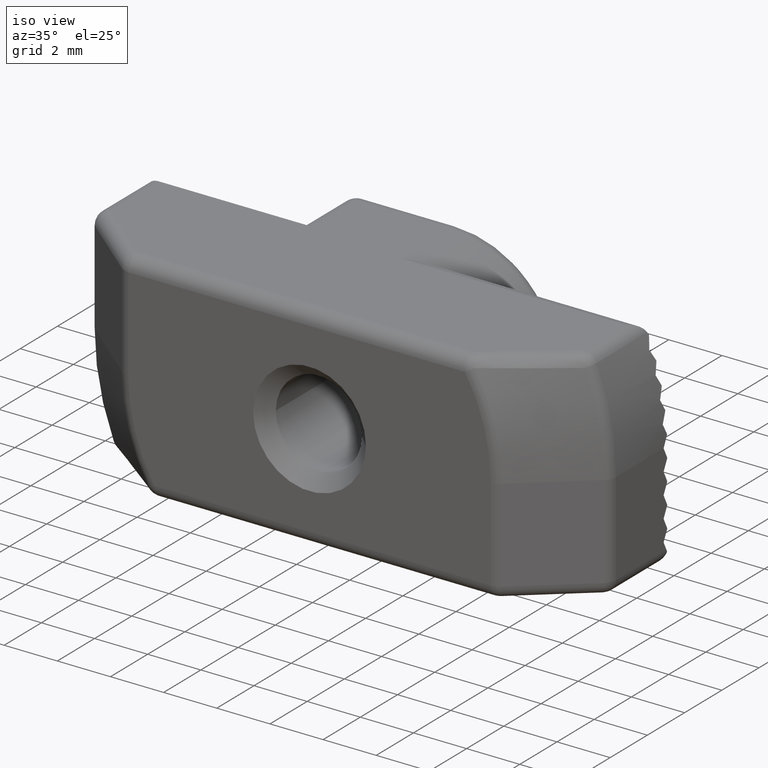
[diagram: clean part render]
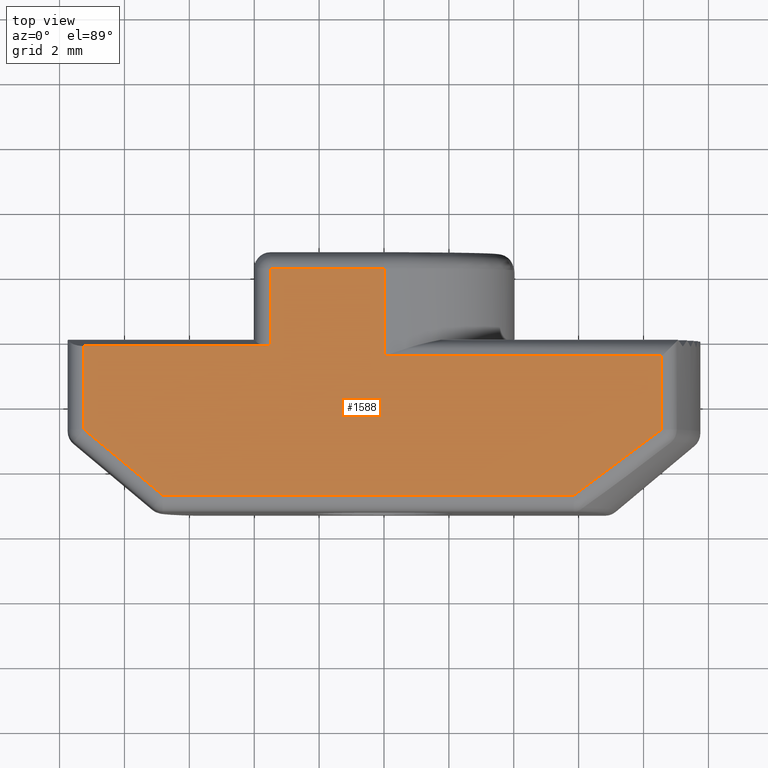
[diagram: tour spotlight — one face highlighted and labeled with its STEP entity id]
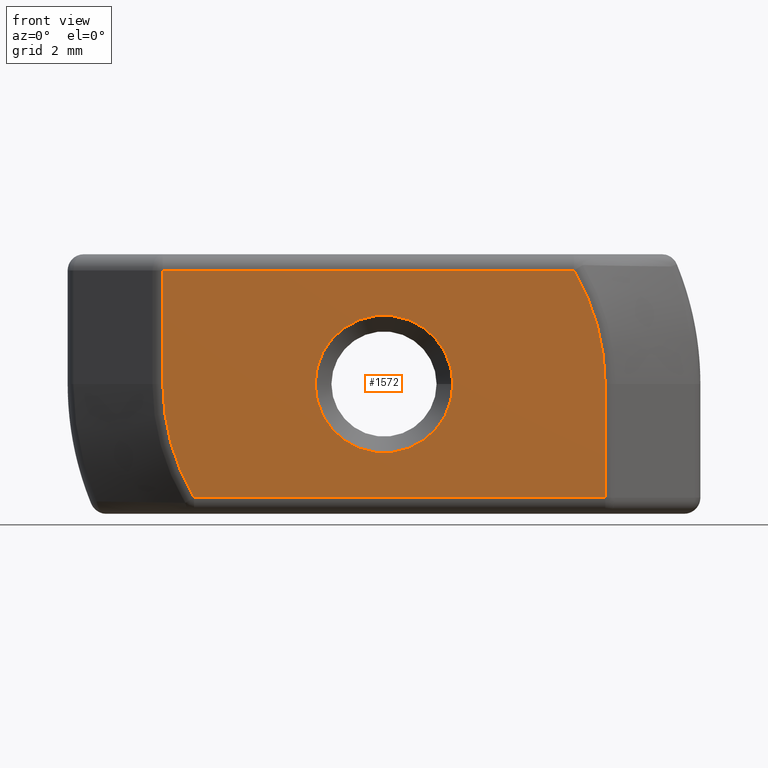
[diagram: tour spotlight — one face highlighted and labeled with its STEP entity id]
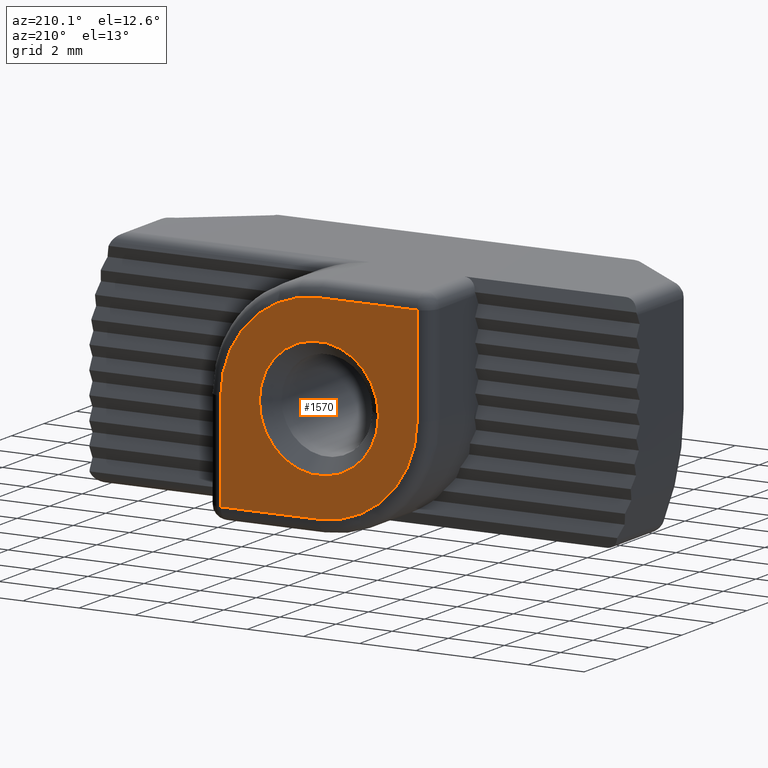
[diagram: tour spotlight — one face highlighted and labeled with its STEP entity id]
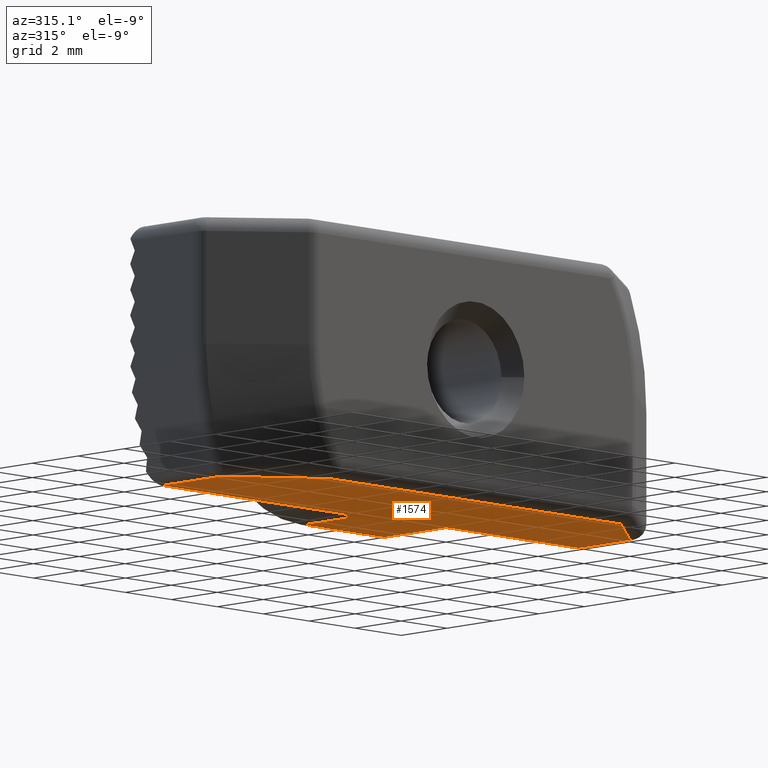
[diagram: tour spotlight — one face highlighted and labeled with its STEP entity id]
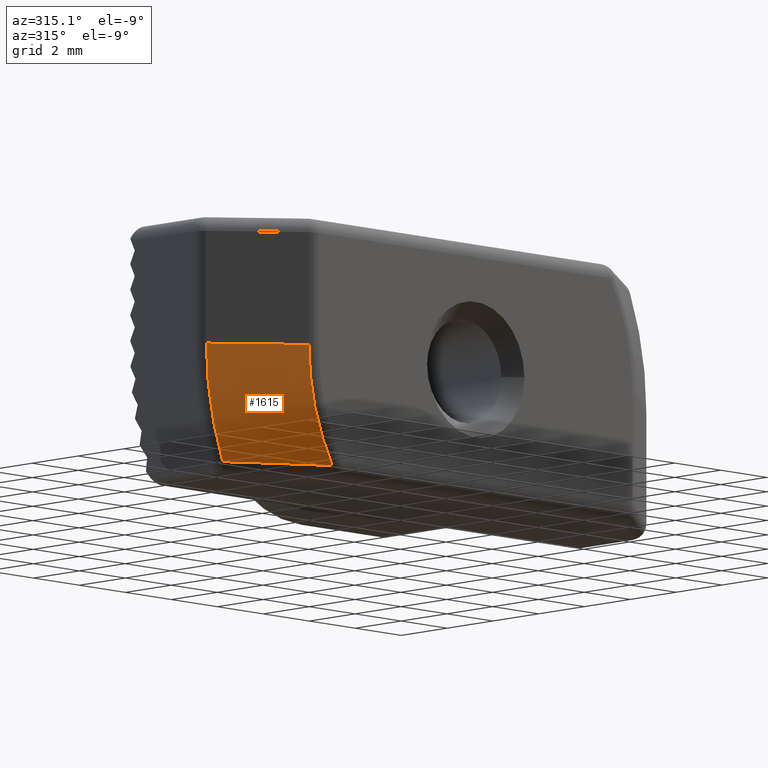
[diagram: tour spotlight — one face highlighted and labeled with its STEP entity id]
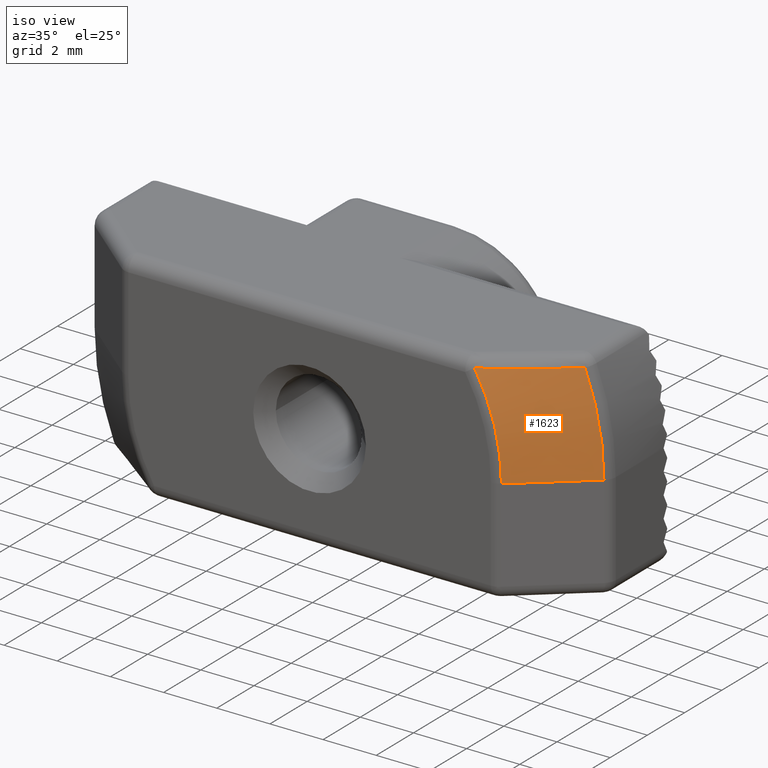
[diagram: tour spotlight — one face highlighted and labeled with its STEP entity id]
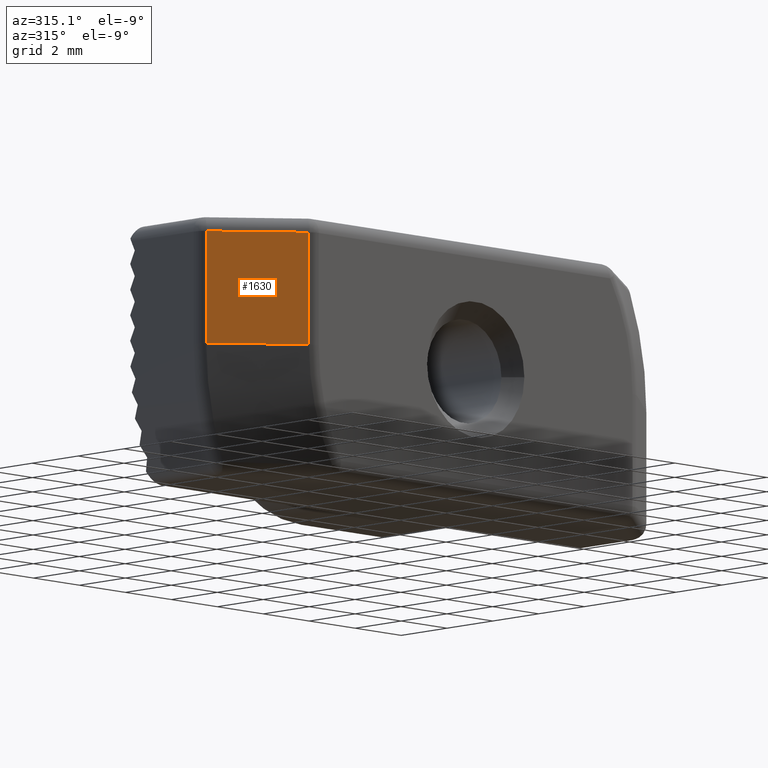
[diagram: tour spotlight — one face highlighted and labeled with its STEP entity id]
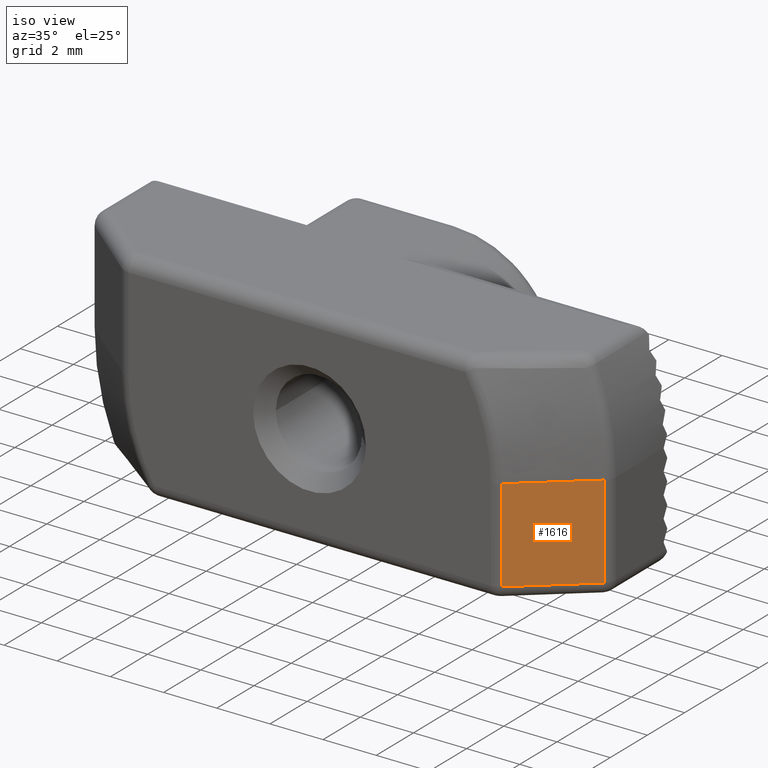
[diagram: tour spotlight — one face highlighted and labeled with its STEP entity id]
A machine part: a face-by-face anatomy tour. The part has 99 B-rep faces; the first image is the clean iso view, then the 8 largest visible faces are spotlighted one at a time (largest first), each with its STEP entity span.

Face 1 — top view, entity #1588. In plain terms, the highlighted planar face has unit normal (0, 0, 1).
Definition (entity closure, byte-faithful):
#35=B_SPLINE_CURVE_WITH_KNOTS('',3,(#2595,#2596,#2597,#2598),
 .UNSPECIFIED.,.F.,.F.,(4,4),(-0.515121076214052,-0.176231007186257),
 .UNSPECIFIED.);
#109=LINE('',#2509,#239);
#112=LINE('',#2528,#242);
#126=LINE('',#2558,#256);
#127=LINE('',#2587,#257);
#128=LINE('',#2589,#258);
#129=LINE('',#2591,#259);
#130=LINE('',#2593,#260);
#131=LINE('',#2600,#261);
#132=LINE('',#2601,#262);
#239=VECTOR('',#1965,3.5);
#242=VECTOR('',#1990,2.4);
#256=VECTOR('',#2010,2.70901699437495);
#257=VECTOR('',#2033,5.75);
#258=VECTOR('',#2034,2.56635666290024);
#259=VECTOR('',#2035,3.16986493998181);
#260=VECTOR('',#2036,12.6700963714095);
#261=VECTOR('',#2037,2.2573396685253);
#262=VECTOR('',#2038,8.56227189477185);
#353=PLANE('',#1728);
#451=FACE_OUTER_BOUND('',#555,.T.);
#555=EDGE_LOOP('',(#1189,#1190,#1191,#1192,#1193,#1194,#1195,#1196,#1197,
#1198));
#721=VERTEX_POINT('',#2490);
#725=VERTEX_POINT('',#2505);
#729=VERTEX_POINT('',#2525);
#743=VERTEX_POINT('',#2557);
#754=VERTEX_POINT('',#2586);
#755=VERTEX_POINT('',#2588);
#756=VERTEX_POINT('',#2590);
#757=VERTEX_POINT('',#2592);
#758=VERTEX_POINT('',#2594);
#759=VERTEX_POINT('',#2599);
#881=EDGE_CURVE('',#721,#725,#109,.T.);
#890=EDGE_CURVE('',#729,#721,#112,.T.);
#905=EDGE_CURVE('',#725,#743,#126,.T.);
#917=EDGE_CURVE('',#729,#754,#127,.T.);
#918=EDGE_CURVE('',#755,#754,#128,.T.);
#919=EDGE_CURVE('',#756,#755,#129,.T.);
#920=EDGE_CURVE('',#757,#756,#130,.T.);
#921=EDGE_CURVE('',#758,#757,#35,.T.);
#922=EDGE_CURVE('',#759,#758,#131,.T.);
#923=EDGE_CURVE('',#743,#759,#132,.T.);
#1189=ORIENTED_EDGE('',*,*,#881,.F.);
#1190=ORIENTED_EDGE('',*,*,#890,.F.);
#1191=ORIENTED_EDGE('',*,*,#917,.T.);
#1192=ORIENTED_EDGE('',*,*,#918,.F.);
#1193=ORIENTED_EDGE('',*,*,#919,.F.);
#1194=ORIENTED_EDGE('',*,*,#920,.F.);
#1195=ORIENTED_EDGE('',*,*,#921,.F.);
#1196=ORIENTED_EDGE('',*,*,#922,.F.);
#1197=ORIENTED_EDGE('',*,*,#923,.F.);
#1198=ORIENTED_EDGE('',*,*,#905,.F.);
#1588=ADVANCED_FACE('',(#451),#353,.T.);
#1728=AXIS2_PLACEMENT_3D('',#2585,#2031,#2032);
#1965=DIRECTION('',(1.,0.,0.));
#1990=DIRECTION('',(0.,1.,0.));
#2010=DIRECTION('',(0.,-1.,0.));
#2031=DIRECTION('center_axis',(0.,0.,1.));
#2032=DIRECTION('ref_axis',(1.,0.,0.));
#2033=DIRECTION('',(-1.,0.,0.));
#2034=DIRECTION('',(0.,1.,0.));
#2035=DIRECTION('',(-0.767076870152409,0.641555200491106,0.));
#2036=DIRECTION('',(-1.,0.,0.));
#2037=DIRECTION('',(0.,-1.,0.));
#2038=DIRECTION('',(1.,0.,0.));
#2490=CARTESIAN_POINT('',(-3.5,2.2,4.));
#2505=CARTESIAN_POINT('',(5.55111512312578E-16,2.2,4.));
#2509=CARTESIAN_POINT('',(2.,2.2,4.));
#2525=CARTESIAN_POINT('',(-3.5,-0.200000000000001,4.));
#2528=CARTESIAN_POINT('',(-3.5,0.542762680090972,4.));
#2557=CARTESIAN_POINT('',(5.55111512312578E-16,-0.509016994374949,4.));
#2558=CARTESIAN_POINT('',(5.55111512312578E-16,2.7,4.));
#2585=CARTESIAN_POINT('Origin',(0.,-1.61447463981806,4.));
#2586=CARTESIAN_POINT('',(-9.25,-0.200000000000001,4.));
#2587=CARTESIAN_POINT('',(-4.875,-0.200000000000001,4.));
#2588=CARTESIAN_POINT('',(-9.25,-2.76635666290024,4.));
#2589=CARTESIAN_POINT('',(-9.25,-0.807237319909028,4.));
#2590=CARTESIAN_POINT('',(-6.8184699230329,-4.8,4.));
#2591=CARTESIAN_POINT('',(-6.90166250491495,-4.73042074969865,4.));
#2592=CARTESIAN_POINT('',(5.8516264483766,-4.8,4.));
#2593=CARTESIAN_POINT('',(-3.5,-4.8,4.));
#2594=CARTESIAN_POINT('',(8.56227189477185,-2.76635666290024,4.));
#2595=CARTESIAN_POINT('Ctrl Pts',(8.56227189477186,-2.76635666290024,4.));
#2596=CARTESIAN_POINT('Ctrl Pts',(7.66905012195268,-3.45787185373182,4.));
#2597=CARTESIAN_POINT('Ctrl Pts',(6.7693143617693,-4.14131189762828,4.));
#2598=CARTESIAN_POINT('Ctrl Pts',(5.85162644837423,-4.79999999999948,4.));
#2599=CARTESIAN_POINT('',(8.56227189477185,-0.509016994374949,4.));
#2600=CARTESIAN_POINT('',(8.56227189477185,-1.5,4.));
#2601=CARTESIAN_POINT('',(4.875,-0.509016994374949,4.));

Face 2 — front view, entity #1572. In plain terms, the highlighted planar face has unit normal (0, -1, 0).
Definition (entity closure, byte-faithful):
#93=LINE('',#2441,#223);
#94=LINE('',#2445,#224);
#95=LINE('',#2447,#225);
#96=LINE('',#2450,#226);
#223=VECTOR('',#1901,3.5);
#224=VECTOR('',#1904,12.6700963714064);
#225=VECTOR('',#1905,3.5);
#226=VECTOR('',#1908,12.6700963714064);
#350=PLANE('',#1679);
#430=FACE_BOUND('',#539,.T.);
#435=FACE_OUTER_BOUND('',#538,.T.);
#538=EDGE_LOOP('',(#1093,#1094,#1095,#1096,#1097,#1098));
#539=EDGE_LOOP('',(#1099));
#639=CIRCLE('',#1678,2.121);
#640=CIRCLE('',#1680,6.8184699230329);
#641=CIRCLE('',#1681,6.8184699230329);
#699=VERTEX_POINT('',#2436);
#700=VERTEX_POINT('',#2439);
#701=VERTEX_POINT('',#2440);
#702=VERTEX_POINT('',#2442);
#703=VERTEX_POINT('',#2444);
#704=VERTEX_POINT('',#2446);
#705=VERTEX_POINT('',#2448);
#847=EDGE_CURVE('',#699,#699,#639,.T.);
#848=EDGE_CURVE('',#700,#701,#93,.T.);
#849=EDGE_CURVE('',#702,#700,#640,.T.);
#850=EDGE_CURVE('',#703,#702,#94,.T.);
#851=EDGE_CURVE('',#704,#703,#95,.T.);
#852=EDGE_CURVE('',#705,#704,#641,.T.);
#853=EDGE_CURVE('',#701,#705,#96,.T.);
#1093=ORIENTED_EDGE('',*,*,#848,.F.);
#1094=ORIENTED_EDGE('',*,*,#849,.F.);
#1095=ORIENTED_EDGE('',*,*,#850,.F.);
#1096=ORIENTED_EDGE('',*,*,#851,.F.);
#1097=ORIENTED_EDGE('',*,*,#852,.F.);
#1098=ORIENTED_EDGE('',*,*,#853,.F.);
#1099=ORIENTED_EDGE('',*,*,#847,.F.);
#1572=ADVANCED_FACE('',(#435,#430),#350,.T.);
#1678=AXIS2_PLACEMENT_3D('',#2437,#1897,#1898);
#1679=AXIS2_PLACEMENT_3D('',#2438,#1899,#1900);
#1680=AXIS2_PLACEMENT_3D('',#2443,#1902,#1903);
#1681=AXIS2_PLACEMENT_3D('',#2449,#1906,#1907);
#1897=DIRECTION('center_axis',(0.,-1.,0.));
#1898=DIRECTION('ref_axis',(-1.,0.,0.));
#1899=DIRECTION('center_axis',(0.,-1.,0.));
#1900=DIRECTION('ref_axis',(1.,0.,0.));
#1901=DIRECTION('',(0.,0.,-1.));
#1902=DIRECTION('center_axis',(0.,1.,0.));
#1903=DIRECTION('ref_axis',(0.954110005881997,0.,0.29945633517402));
#1904=DIRECTION('',(1.,0.,0.));
#1905=DIRECTION('',(0.,0.,1.));
#1906=DIRECTION('center_axis',(0.,1.,0.));
#1907=DIRECTION('ref_axis',(-0.954110005881997,0.,-0.29945633517402));
#1908=DIRECTION('',(-1.,0.,0.));
#2436=CARTESIAN_POINT('',(2.121,-5.3,1.6475263668806E-15));
#2437=CARTESIAN_POINT('Origin',(1.66533453693773E-15,-5.3,1.38777878078145E-15));
#2438=CARTESIAN_POINT('Origin',(-7.,-5.3,0.));
#2439=CARTESIAN_POINT('',(6.8184699230329,-5.3,0.));
#2440=CARTESIAN_POINT('',(6.8184699230329,-5.3,-3.5));
#2441=CARTESIAN_POINT('',(6.8184699230329,-5.3,0.));
#2442=CARTESIAN_POINT('',(5.8516264483735,-5.3,3.5));
#2443=CARTESIAN_POINT('Origin',(0.,-5.3,0.));
#2444=CARTESIAN_POINT('',(-6.8184699230329,-5.3,3.5));
#2445=CARTESIAN_POINT('',(-3.5,-5.3,3.5));
#2446=CARTESIAN_POINT('',(-6.8184699230329,-5.3,2.77555756156289E-16));
#2447=CARTESIAN_POINT('',(-6.8184699230329,-5.3,0.));
#2448=CARTESIAN_POINT('',(-5.8516264483735,-5.3,-3.5));
#2449=CARTESIAN_POINT('Origin',(0.,-5.3,0.));
#2450=CARTESIAN_POINT('',(-3.5,-5.3,-3.5));

Face 3 — auxiliary view, entity #1570. In plain terms, the highlighted planar face has unit normal (0, 1, 0).
Definition (entity closure, byte-faithful):
#89=LINE('',#2425,#219);
#90=LINE('',#2427,#220);
#91=LINE('',#2431,#221);
#92=LINE('',#2433,#222);
#219=VECTOR('',#1887,3.5);
#220=VECTOR('',#1888,3.5);
#221=VECTOR('',#1891,3.5);
#222=VECTOR('',#1892,3.5);
#349=PLANE('',#1674);
#428=FACE_BOUND('',#535,.T.);
#433=FACE_OUTER_BOUND('',#534,.T.);
#534=EDGE_LOOP('',(#1084,#1085,#1086,#1087,#1088,#1089));
#535=EDGE_LOOP('',(#1090));
#635=CIRCLE('',#1671,2.121);
#637=CIRCLE('',#1675,3.5);
#638=CIRCLE('',#1676,3.5);
#691=VERTEX_POINT('',#2417);
#693=VERTEX_POINT('',#2423);
#694=VERTEX_POINT('',#2424);
#695=VERTEX_POINT('',#2426);
#696=VERTEX_POINT('',#2428);
#697=VERTEX_POINT('',#2430);
#698=VERTEX_POINT('',#2432);
#839=EDGE_CURVE('',#691,#691,#635,.T.);
#841=EDGE_CURVE('',#693,#694,#89,.T.);
#842=EDGE_CURVE('',#695,#693,#90,.T.);
#843=EDGE_CURVE('',#696,#695,#637,.T.);
#844=EDGE_CURVE('',#697,#696,#91,.T.);
#845=EDGE_CURVE('',#698,#697,#92,.T.);
#846=EDGE_CURVE('',#694,#698,#638,.T.);
#1084=ORIENTED_EDGE('',*,*,#841,.F.);
#1085=ORIENTED_EDGE('',*,*,#842,.F.);
#1086=ORIENTED_EDGE('',*,*,#843,.F.);
#1087=ORIENTED_EDGE('',*,*,#844,.F.);
#1088=ORIENTED_EDGE('',*,*,#845,.F.);
#1089=ORIENTED_EDGE('',*,*,#846,.F.);
#1090=ORIENTED_EDGE('',*,*,#839,.F.);
#1570=ADVANCED_FACE('',(#433,#428),#349,.T.);
#1671=AXIS2_PLACEMENT_3D('',#2418,#1879,#1880);
#1674=AXIS2_PLACEMENT_3D('',#2422,#1885,#1886);
#1675=AXIS2_PLACEMENT_3D('',#2429,#1889,#1890);
#1676=AXIS2_PLACEMENT_3D('',#2434,#1893,#1894);
#1879=DIRECTION('center_axis',(0.,1.,0.));
#1880=DIRECTION('ref_axis',(1.,0.,0.));
#1885=DIRECTION('center_axis',(0.,1.,0.));
#1886=DIRECTION('ref_axis',(-1.,0.,0.));
#1887=DIRECTION('',(0.,0.,1.));
#1888=DIRECTION('',(1.,0.,0.));
#1889=DIRECTION('center_axis',(0.,-1.,0.));
#1890=DIRECTION('ref_axis',(-0.707106781186548,0.,-0.707106781186547));
#1891=DIRECTION('',(0.,0.,-1.));
#1892=DIRECTION('',(-1.,0.,0.));
#1893=DIRECTION('center_axis',(0.,-1.,0.));
#1894=DIRECTION('ref_axis',(0.707106781186547,0.,0.707106781186548));
#2417=CARTESIAN_POINT('',(-2.121,2.7,1.6475263668806E-15));
#2418=CARTESIAN_POINT('Origin',(1.66533453693773E-15,2.7,1.38777878078145E-15));
#2422=CARTESIAN_POINT('Origin',(4.,2.7,0.));
#2423=CARTESIAN_POINT('',(3.5,2.7,-3.5));
#2424=CARTESIAN_POINT('',(3.5,2.7,0.));
#2425=CARTESIAN_POINT('',(3.5,2.7,0.));
#2426=CARTESIAN_POINT('',(0.,2.7,-3.5));
#2427=CARTESIAN_POINT('',(2.,2.7,-3.5));
#2428=CARTESIAN_POINT('',(-3.5,2.7,-5.55111512312578E-16));
#2429=CARTESIAN_POINT('Origin',(0.,2.7,-5.55111512312578E-16));
#2430=CARTESIAN_POINT('',(-3.5,2.7,3.5));
#2431=CARTESIAN_POINT('',(-3.5,2.7,0.));
#2432=CARTESIAN_POINT('',(8.32667268468867E-16,2.7,3.5));
#2433=CARTESIAN_POINT('',(2.,2.7,3.5));
#2434=CARTESIAN_POINT('Origin',(5.55111512312578E-16,2.7,0.));

Face 4 — auxiliary view, entity #1574. In plain terms, the highlighted planar face has unit normal (0, 0, -1).
Definition (entity closure, byte-faithful):
#33=B_SPLINE_CURVE_WITH_KNOTS('',3,(#2470,#2471,#2472,#2473),
 .UNSPECIFIED.,.F.,.F.,(4,4),(-0.515121076214052,-0.176231007186256),
 .UNSPECIFIED.);
#97=LINE('',#2456,#227);
#99=LINE('',#2462,#229);
#100=LINE('',#2464,#230);
#101=LINE('',#2466,#231);
#102=LINE('',#2468,#232);
#103=LINE('',#2475,#233);
#104=LINE('',#2477,#234);
#105=LINE('',#2479,#235);
#106=LINE('',#2480,#236);
#227=VECTOR('',#1913,5.75);
#229=VECTOR('',#1919,2.70901699437495);
#230=VECTOR('',#1920,2.25733966852529);
#231=VECTOR('',#1921,3.16986493998181);
#232=VECTOR('',#1922,12.6700963714095);
#233=VECTOR('',#1923,2.56635666290024);
#234=VECTOR('',#1924,8.56227189477185);
#235=VECTOR('',#1925,2.4);
#236=VECTOR('',#1926,3.5);
#351=PLANE('',#1685);
#437=FACE_OUTER_BOUND('',#541,.T.);
#541=EDGE_LOOP('',(#1104,#1105,#1106,#1107,#1108,#1109,#1110,#1111,#1112,
#1113));
#707=VERTEX_POINT('',#2453);
#708=VERTEX_POINT('',#2455);
#710=VERTEX_POINT('',#2461);
#711=VERTEX_POINT('',#2463);
#712=VERTEX_POINT('',#2465);
#713=VERTEX_POINT('',#2467);
#714=VERTEX_POINT('',#2469);
#715=VERTEX_POINT('',#2474);
#716=VERTEX_POINT('',#2476);
#717=VERTEX_POINT('',#2478);
#855=EDGE_CURVE('',#707,#708,#97,.T.);
#858=EDGE_CURVE('',#710,#708,#99,.T.);
#859=EDGE_CURVE('',#711,#707,#100,.T.);
#860=EDGE_CURVE('',#712,#711,#101,.T.);
#861=EDGE_CURVE('',#713,#712,#102,.T.);
#862=EDGE_CURVE('',#714,#713,#33,.T.);
#863=EDGE_CURVE('',#715,#714,#103,.T.);
#864=EDGE_CURVE('',#715,#716,#104,.T.);
#865=EDGE_CURVE('',#716,#717,#105,.T.);
#866=EDGE_CURVE('',#710,#717,#106,.T.);
#1104=ORIENTED_EDGE('',*,*,#858,.T.);
#1105=ORIENTED_EDGE('',*,*,#855,.F.);
#1106=ORIENTED_EDGE('',*,*,#859,.F.);
#1107=ORIENTED_EDGE('',*,*,#860,.F.);
#1108=ORIENTED_EDGE('',*,*,#861,.F.);
#1109=ORIENTED_EDGE('',*,*,#862,.F.);
#1110=ORIENTED_EDGE('',*,*,#863,.F.);
#1111=ORIENTED_EDGE('',*,*,#864,.T.);
#1112=ORIENTED_EDGE('',*,*,#865,.T.);
#1113=ORIENTED_EDGE('',*,*,#866,.F.);
#1574=ADVANCED_FACE('',(#437),#351,.T.);
#1685=AXIS2_PLACEMENT_3D('',#2460,#1917,#1918);
#1913=DIRECTION('',(-1.,0.,0.));
#1917=DIRECTION('center_axis',(0.,0.,-1.));
#1918=DIRECTION('ref_axis',(-1.,0.,0.));
#1919=DIRECTION('',(0.,-1.,0.));
#1920=DIRECTION('',(0.,1.,0.));
#1921=DIRECTION('',(0.767076870152409,0.641555200491106,0.));
#1922=DIRECTION('',(1.,0.,0.));
#1923=DIRECTION('',(0.,-1.,0.));
#1924=DIRECTION('',(1.,0.,0.));
#1925=DIRECTION('',(0.,1.,0.));
#1926=DIRECTION('',(-1.,0.,0.));
#2453=CARTESIAN_POINT('',(9.25,-0.509016994374948,-4.));
#2455=CARTESIAN_POINT('',(3.5,-0.509016994374948,-4.));
#2456=CARTESIAN_POINT('',(4.875,-0.509016994374948,-4.));
#2460=CARTESIAN_POINT('Origin',(0.,-1.61447463981806,-4.));
#2461=CARTESIAN_POINT('',(3.5,2.2,-4.));
#2462=CARTESIAN_POINT('',(3.5,-0.807237319909028,-4.));
#2463=CARTESIAN_POINT('',(9.25,-2.76635666290024,-4.));
#2464=CARTESIAN_POINT('',(9.25,-2.30723731990903,-4.));
#2465=CARTESIAN_POINT('',(6.8184699230329,-4.8,-4.));
#2466=CARTESIAN_POINT('',(5.52666250491495,-5.88042074969865,-4.));
#2467=CARTESIAN_POINT('',(-5.8516264483766,-4.8,-4.));
#2468=CARTESIAN_POINT('',(-3.5,-4.8,-4.));
#2469=CARTESIAN_POINT('',(-8.56227189477185,-2.76635666290024,-4.));
#2470=CARTESIAN_POINT('Ctrl Pts',(-8.56227189477186,-2.76635666290024,-4.));
#2471=CARTESIAN_POINT('Ctrl Pts',(-7.66905012195268,-3.45787185373182,-4.));
#2472=CARTESIAN_POINT('Ctrl Pts',(-6.76931436176929,-4.14131189762828,-4.));
#2473=CARTESIAN_POINT('Ctrl Pts',(-5.85162644837422,-4.79999999999948,-4.));
#2474=CARTESIAN_POINT('',(-8.56227189477185,-0.2,-4.));
#2475=CARTESIAN_POINT('',(-8.56227189477185,-1.6,-4.));
#2476=CARTESIAN_POINT('',(0.,-0.2,-4.));
#2477=CARTESIAN_POINT('',(-4.875,-0.2,-4.));
#2478=CARTESIAN_POINT('',(0.,2.2,-4.));
#2479=CARTESIAN_POINT('',(0.,25.8424980739588,-4.));
#2480=CARTESIAN_POINT('',(2.,2.2,-4.));

Face 5 — auxiliary view, entity #1615. In plain terms, the highlighted conical surface has half-angle 50.092 deg.
Definition (entity closure, byte-faithful):
#36=B_SPLINE_CURVE_WITH_KNOTS('',3,(#2650,#2651,#2652,#2653),
 .UNSPECIFIED.,.F.,.F.,(4,4),(0.176231007186256,0.515121076214052),
 .UNSPECIFIED.);
#145=LINE('',#2747,#275);
#275=VECTOR('',#2177,3.16986493998181);
#478=FACE_OUTER_BOUND('',#582,.T.);
#582=EDGE_LOOP('',(#1297,#1298,#1299,#1300));
#669=CIRCLE('',#1747,7.13924752327845);
#688=CIRCLE('',#1784,9.57077760024555);
#763=VERTEX_POINT('',#2611);
#765=VERTEX_POINT('',#2621);
#766=VERTEX_POINT('',#2625);
#777=VERTEX_POINT('',#2728);
#937=EDGE_CURVE('',#766,#765,#669,.T.);
#939=EDGE_CURVE('',#765,#763,#36,.T.);
#968=EDGE_CURVE('',#763,#777,#688,.T.);
#976=EDGE_CURVE('',#766,#777,#145,.T.);
#1297=ORIENTED_EDGE('',*,*,#968,.F.);
#1298=ORIENTED_EDGE('',*,*,#939,.F.);
#1299=ORIENTED_EDGE('',*,*,#937,.F.);
#1300=ORIENTED_EDGE('',*,*,#976,.T.);
#1566=CONICAL_SURFACE('',#1791,8.375,50.092115124499);
#1615=ADVANCED_FACE('',(#478),#1566,.T.);
#1747=AXIS2_PLACEMENT_3D('',#2627,#2075,#2076);
#1784=AXIS2_PLACEMENT_3D('',#2732,#2157,#2158);
#1791=AXIS2_PLACEMENT_3D('',#2746,#2175,#2176);
#2075=DIRECTION('center_axis',(0.,-1.,0.));
#2076=DIRECTION('ref_axis',(-0.954110005881997,0.,-0.29945633517402));
#2157=DIRECTION('center_axis',(0.,1.,0.));
#2158=DIRECTION('ref_axis',(-0.977744909889507,0.,-0.209797262101202));
#2175=DIRECTION('center_axis',(0.,1.,0.));
#2176=DIRECTION('ref_axis',(-1.,0.,0.));
#2177=DIRECTION('',(-0.76707687015241,0.641555200491106,0.));
#2611=CARTESIAN_POINT('',(-8.85920000623724,-3.14989509797645,-3.62137530820102));
#2621=CARTESIAN_POINT('',(-6.12691851695136,-5.18353843507569,-3.66465887706958));
#2625=CARTESIAN_POINT('',(-7.13924752327845,-5.18353843507621,0.));
#2627=CARTESIAN_POINT('Origin',(-5.55111512312578E-16,-5.18353843507621,
9.71445146547012E-16));
#2650=CARTESIAN_POINT('Ctrl Pts',(-6.12691851695136,-5.18353843507569,-3.66465887706958));
#2651=CARTESIAN_POINT('Ctrl Pts',(-7.05598203125331,-4.52485033270448,-3.64564008646021));
#2652=CARTESIAN_POINT('Ctrl Pts',(-7.96154343151435,-3.84141028880802,-3.63222444525791));
#2653=CARTESIAN_POINT('Ctrl Pts',(-8.85920000623725,-3.14989509797645,-3.62137530820102));
#2728=CARTESIAN_POINT('',(-9.57077760024555,-3.14989509797645,0.));
#2732=CARTESIAN_POINT('Origin',(-5.55111512312578E-16,-3.14989509797645,
8.32667268468867E-16));
#2746=CARTESIAN_POINT('Origin',(0.,-4.15,0.));
#2747=CARTESIAN_POINT('',(-8.37500000000001,-4.15,0.));

Face 6 — iso view, entity #1623. In plain terms, the highlighted conical surface has half-angle 50.092 deg.
Definition (entity closure, byte-faithful):
#37=B_SPLINE_CURVE_WITH_KNOTS('',3,(#2701,#2702,#2703,#2704),
 .UNSPECIFIED.,.F.,.F.,(4,4),(0.176231007186257,0.515121076214052),
 .UNSPECIFIED.);
#146=LINE('',#2749,#276);
#276=VECTOR('',#2180,3.16986493998181);
#486=FACE_OUTER_BOUND('',#590,.T.);
#590=EDGE_LOOP('',(#1358,#1359,#1360,#1361));
#677=CIRCLE('',#1762,7.13924752327845);
#685=CIRCLE('',#1775,9.57077760024555);
#767=VERTEX_POINT('',#2656);
#770=VERTEX_POINT('',#2669);
#772=VERTEX_POINT('',#2678);
#775=VERTEX_POINT('',#2711);
#950=EDGE_CURVE('',#770,#767,#677,.T.);
#954=EDGE_CURVE('',#767,#772,#37,.T.);
#961=EDGE_CURVE('',#772,#775,#685,.T.);
#977=EDGE_CURVE('',#770,#775,#146,.T.);
#1358=ORIENTED_EDGE('',*,*,#950,.F.);
#1359=ORIENTED_EDGE('',*,*,#977,.T.);
#1360=ORIENTED_EDGE('',*,*,#961,.F.);
#1361=ORIENTED_EDGE('',*,*,#954,.F.);
#1567=CONICAL_SURFACE('',#1820,8.375,50.092115124499);
#1623=ADVANCED_FACE('',(#486),#1567,.T.);
#1762=AXIS2_PLACEMENT_3D('',#2673,#2108,#2109);
#1775=AXIS2_PLACEMENT_3D('',#2717,#2136,#2137);
#1820=AXIS2_PLACEMENT_3D('',#2820,#2249,#2250);
#2108=DIRECTION('center_axis',(4.6568397733238E-17,-1.,-1.48373465565038E-16));
#2109=DIRECTION('ref_axis',(0.954110005881997,0.,0.29945633517402));
#2136=DIRECTION('center_axis',(5.6709859768423E-17,1.,1.21683817458102E-17));
#2137=DIRECTION('ref_axis',(0.977744909889507,-5.80006699035965E-17,0.209797262101202));
#2180=DIRECTION('',(0.767076870152409,0.641555200491106,0.));
#2249=DIRECTION('center_axis',(0.,1.,0.));
#2250=DIRECTION('ref_axis',(1.,0.,0.));
#2656=CARTESIAN_POINT('',(6.12691851695137,-5.18353843507568,3.66465887706959));
#2669=CARTESIAN_POINT('',(7.13924752327845,-5.18353843507621,0.));
#2673=CARTESIAN_POINT('Origin',(5.55111512312578E-16,-5.1835384350762,-8.32667268468867E-16));
#2678=CARTESIAN_POINT('',(8.85920000623724,-3.14989509797645,3.62137530820102));
#2701=CARTESIAN_POINT('Ctrl Pts',(6.12691851695137,-5.18353843507568,3.66465887706959));
#2702=CARTESIAN_POINT('Ctrl Pts',(7.05598203125331,-4.52485033270448,3.64564008646021));
#2703=CARTESIAN_POINT('Ctrl Pts',(7.96154343151435,-3.84141028880802,3.63222444525791));
#2704=CARTESIAN_POINT('Ctrl Pts',(8.85920000623724,-3.14989509797645,3.62137530820102));
#2711=CARTESIAN_POINT('',(9.57077760024555,-3.14989509797645,0.));
#2717=CARTESIAN_POINT('Origin',(5.55111512312578E-16,-3.14989509797645,
-8.32667268468867E-16));
#2749=CARTESIAN_POINT('',(8.375,-4.15,0.));
#2820=CARTESIAN_POINT('Origin',(0.,-4.15,0.));

Face 7 — auxiliary view, entity #1630. In plain terms, the highlighted planar face has unit normal (-0.6416, -0.7671, 0).
Definition (entity closure, byte-faithful):
#133=LINE('',#2629,#263);
#140=LINE('',#2726,#270);
#141=LINE('',#2734,#271);
#145=LINE('',#2747,#275);
#263=VECTOR('',#2079,3.5);
#270=VECTOR('',#2150,3.16986493998181);
#271=VECTOR('',#2161,3.5);
#275=VECTOR('',#2177,3.16986493998181);
#365=PLANE('',#1831);
#493=FACE_OUTER_BOUND('',#597,.T.);
#597=EDGE_LOOP('',(#1395,#1396,#1397,#1398));
#761=VERTEX_POINT('',#2605);
#764=VERTEX_POINT('',#2615);
#766=VERTEX_POINT('',#2625);
#777=VERTEX_POINT('',#2728);
#938=EDGE_CURVE('',#764,#766,#133,.T.);
#965=EDGE_CURVE('',#761,#764,#140,.T.);
#969=EDGE_CURVE('',#777,#761,#141,.T.);
#976=EDGE_CURVE('',#766,#777,#145,.T.);
#1395=ORIENTED_EDGE('',*,*,#969,.F.);
#1396=ORIENTED_EDGE('',*,*,#976,.F.);
#1397=ORIENTED_EDGE('',*,*,#938,.F.);
#1398=ORIENTED_EDGE('',*,*,#965,.F.);
#1630=ADVANCED_FACE('',(#493),#365,.T.);
#1831=AXIS2_PLACEMENT_3D('',#2863,#2288,#2289);
#2079=DIRECTION('',(0.,0.,-1.));
#2150=DIRECTION('',(0.76707687015241,-0.641555200491106,0.));
#2161=DIRECTION('',(0.,0.,1.));
#2177=DIRECTION('',(-0.76707687015241,0.641555200491106,0.));
#2288=DIRECTION('center_axis',(-0.641555200491106,-0.76707687015241,0.));
#2289=DIRECTION('ref_axis',(0.76707687015241,-0.641555200491106,0.));
#2605=CARTESIAN_POINT('',(-9.57077760024555,-3.14989509797645,3.5));
#2615=CARTESIAN_POINT('',(-7.13924752327845,-5.18353843507621,3.5));
#2625=CARTESIAN_POINT('',(-7.13924752327845,-5.18353843507621,0.));
#2629=CARTESIAN_POINT('',(-7.13924752327845,-5.18353843507621,0.));
#2726=CARTESIAN_POINT('',(-7.22244010516051,-5.11395918477485,3.5));
#2728=CARTESIAN_POINT('',(-9.57077760024555,-3.14989509797645,0.));
#2734=CARTESIAN_POINT('',(-9.57077760024555,-3.14989509797645,0.));
#2747=CARTESIAN_POINT('',(-8.37500000000001,-4.15,0.));
#2863=CARTESIAN_POINT('Origin',(-9.75,-3.,0.));

Face 8 — iso view, entity #1616. In plain terms, the highlighted planar face has unit normal (0.6416, -0.7671, 0).
Definition (entity closure, byte-faithful):
#135=LINE('',#2671,#265);
#136=LINE('',#2713,#266);
#138=LINE('',#2719,#268);
#146=LINE('',#2749,#276);
#265=VECTOR('',#2105,3.5);
#266=VECTOR('',#2130,3.5);
#268=VECTOR('',#2140,3.16986493998181);
#276=VECTOR('',#2180,3.16986493998181);
#354=PLANE('',#1792);
#479=FACE_OUTER_BOUND('',#583,.T.);
#583=EDGE_LOOP('',(#1301,#1302,#1303,#1304));
#769=VERTEX_POINT('',#2664);
#770=VERTEX_POINT('',#2669);
#773=VERTEX_POINT('',#2706);
#775=VERTEX_POINT('',#2711);
#949=EDGE_CURVE('',#769,#770,#135,.T.);
#958=EDGE_CURVE('',#775,#773,#136,.T.);
#962=EDGE_CURVE('',#773,#769,#138,.T.);
#977=EDGE_CURVE('',#770,#775,#146,.T.);
#1301=ORIENTED_EDGE('',*,*,#949,.F.);
#1302=ORIENTED_EDGE('',*,*,#962,.F.);
#1303=ORIENTED_EDGE('',*,*,#958,.F.);
#1304=ORIENTED_EDGE('',*,*,#977,.F.);
#1616=ADVANCED_FACE('',(#479),#354,.T.);
#1792=AXIS2_PLACEMENT_3D('',#2748,#2178,#2179);
#2105=DIRECTION('',(0.,0.,1.));
#2130=DIRECTION('',(0.,0.,-1.));
#2140=DIRECTION('',(-0.767076870152409,-0.641555200491106,0.));
#2178=DIRECTION('center_axis',(0.641555200491106,-0.76707687015241,0.));
#2179=DIRECTION('ref_axis',(0.76707687015241,0.641555200491106,0.));
#2180=DIRECTION('',(0.767076870152409,0.641555200491106,0.));
#2664=CARTESIAN_POINT('',(7.13924752327845,-5.18353843507621,-3.5));
#2669=CARTESIAN_POINT('',(7.13924752327845,-5.18353843507621,0.));
#2671=CARTESIAN_POINT('',(7.13924752327845,-5.18353843507621,0.));
#2706=CARTESIAN_POINT('',(9.57077760024555,-3.14989509797645,-3.5));
#2711=CARTESIAN_POINT('',(9.57077760024555,-3.14989509797645,0.));
#2713=CARTESIAN_POINT('',(9.57077760024555,-3.14989509797645,0.));
#2719=CARTESIAN_POINT('',(5.84744010516051,-6.26395918477485,-3.5));
#2748=CARTESIAN_POINT('Origin',(7.,-5.3,0.));
#2749=CARTESIAN_POINT('',(8.375,-4.15,0.));